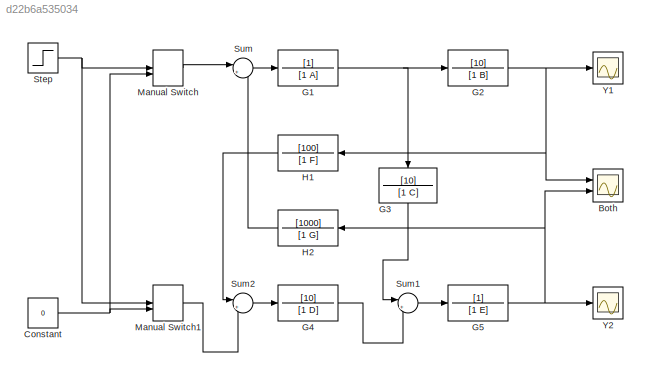
MODEL slx_d22b6a535034
KIND model
CONFIG AbsTol = auto
CONFIG EnableMultiTasking = off
CONFIG FixedStep = auto
CONFIG MaxStep = auto
CONFIG MinStep = auto
CONFIG RelTol = 1e-3
CONFIG SampleTimeConstraint = Unconstrained
CONFIG SolverName = VariableStepAuto
CONFIG StartTime = 0.0
CONFIG StopTime = 3
BLOCK [Scope] Both
  Floating = off
  NumInputPorts = 2
  Ports = [2]
  ScopeSpecificationString = Simulink.scopes.TimeScopeBlockCfg('CurrentConfiguration', extmgr.ConfigurationSet(extmgr.Configuration('Core','General UI',true),extmgr.Configuration('Core','Source UI',true),extmgr.Configuration('Sources','WiredSimulink',true,'DataLoggingVariableName','ScopeData2'),extmgr.Configuration('Visuals','Time Domain',true,'SerializedDisplays',{struct('MinYLimReal','-0.04486','MaxYLimReal','0.10863','YLab...<+1366ch>
BLOCK [Constant] Constant
  Value = 0
BLOCK [TransferFcn] G1
  ContinuousStateAttributes = "G1"
  Denominator = [1 A]
BLOCK [TransferFcn] G2
  Denominator = [1 B]
  Numerator = [10]
BLOCK [TransferFcn] G3
  ContinuousStateAttributes = "G3"
  Denominator = [1 C]
  NameLocation = left
  Numerator = [10]
BLOCK [TransferFcn] G4
  Denominator = [1 D]
  Numerator = [10]
BLOCK [TransferFcn] G5
  Denominator = [1 E]
BLOCK [TransferFcn] H1
  Denominator = [1 F]
  Numerator = [100]
BLOCK [TransferFcn] H2
  Denominator = [1 G]
  Numerator = [1000]
BLOCK [ManualSwitch] Manual Switch
BLOCK [ManualSwitch] Manual Switch1
BLOCK [Step] Step
  SampleTime = 0
  Time = 0
BLOCK [Sum] Sum
  Inputs = |+-
  Ports = [2, 1]
BLOCK [Sum] Sum1
  Inputs = |++
  Ports = [2, 1]
BLOCK [Sum] Sum2
  Inputs = |+-
  Ports = [2, 1]
BLOCK [Scope] Y1
  Floating = off
  NumInputPorts = 1
  Ports = [1]
  ScopeSpecificationString = Simulink.scopes.TimeScopeBlockCfg('CurrentConfiguration', extmgr.ConfigurationSet(extmgr.Configuration('Core','General UI',true),extmgr.Configuration('Core','Source UI',true),extmgr.Configuration('Sources','WiredSimulink',true),extmgr.Configuration('Visuals','Time Domain',true,'SerializedDisplays',{struct('MinYLimReal','-0.01166','MaxYLimReal','0.10494','YLabelReal','','MinYLimMag','0.00000','MaxY...<+1351ch>
BLOCK [Scope] Y2
  Floating = off
  NumInputPorts = 1
  Ports = [1]
  ScopeSpecificationString = Simulink.scopes.TimeScopeBlockCfg('CurrentConfiguration', extmgr.ConfigurationSet(extmgr.Configuration('Core','General UI',true),extmgr.Configuration('Core','Source UI',true),extmgr.Configuration('Sources','WiredSimulink',true,'DataLoggingVariableName','ScopeData1'),extmgr.Configuration('Visuals','Time Domain',true,'SerializedDisplays',{struct('MinYLimReal','-0.0332','MaxYLimReal','0.00369','YLabe...<+1357ch>
NET Constant:1 -> Manual Switch1:2, Manual Switch:2
NET G1:1 -> G2:1, G3:1
NET G2:1 -> Both:1, H1:1, Y1:1
LINE G3:1 -> Sum1:1
LINE G4:1 -> Sum1:2
NET G5:1 -> Both:2, H2:1, Y2:1
LINE H1:1 -> Sum2:1
LINE H2:1 -> Sum:2
LINE Manual Switch1:1 -> Sum2:2
LINE Manual Switch:1 -> Sum:1
NET Step:1 -> Manual Switch1:1, Manual Switch:1
LINE Sum1:1 -> G5:1
LINE Sum2:1 -> G4:1
LINE Sum:1 -> G1:1
note: NET lines group one-source signal fan-out (src -> all destinations, sorted); 1:1 wires keep LINE
